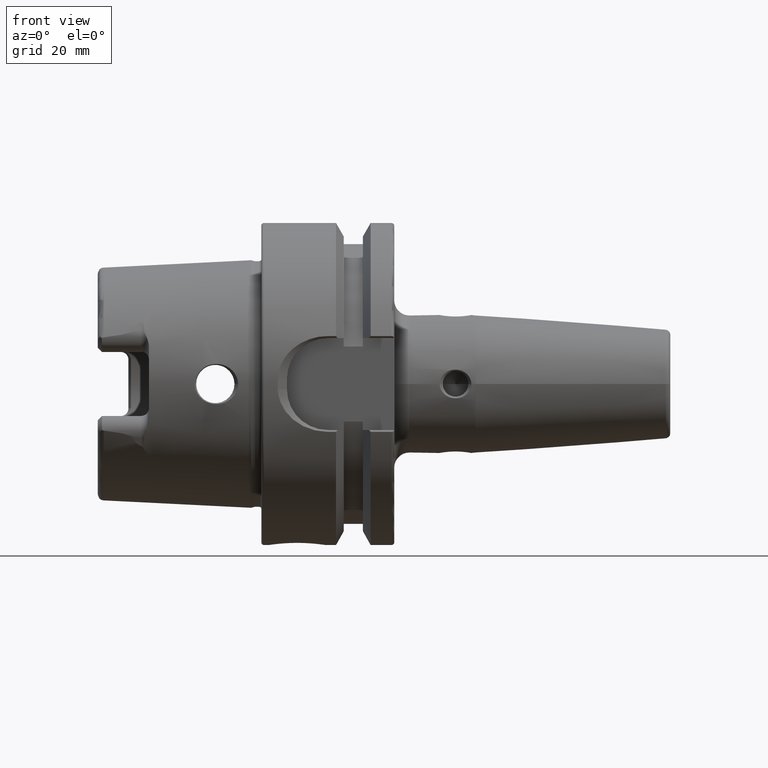
[diagram: clean part render]
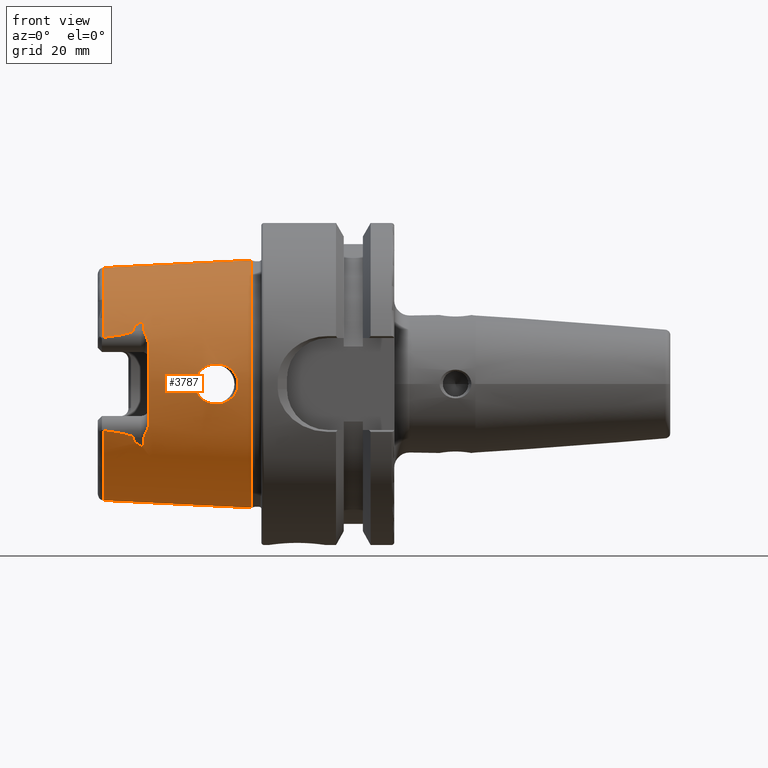
[diagram: same view with one face highlighted and labeled with its STEP entity id]
A machine part, front view. The second image highlights one B-rep face of the part: STEP entity #3787.
In plain terms, the highlighted conical surface has half-angle 2.868 deg.
Its self-contained STEP definition (entity closure, byte-faithful):
#414=CARTESIAN_POINT('',(-1.214962335933E0,0.E0,0.E0));
#415=DIRECTION('',(-1.E0,0.E0,0.E0));
#416=DIRECTION('',(0.E0,0.E0,-1.E0));
#417=AXIS2_PLACEMENT_3D('',#414,#415,#416);
#419=CARTESIAN_POINT('',(-1.214962335933E0,-8.216463940023E-1,
-3.589629535925E-1));
#420=CARTESIAN_POINT('',(-1.206909617047E0,-8.216574272328E-1,
-3.599454130403E-1));
#421=CARTESIAN_POINT('',(-1.191494473020E0,-8.216535039491E-1,
-3.618767076914E-1));
#422=CARTESIAN_POINT('',(-1.170502728434E0,-8.215784687609E-1,
-3.646469196396E-1));
#423=CARTESIAN_POINT('',(-1.151453563512E0,-8.214437228318E-1,
-3.672944627912E-1));
#424=CARTESIAN_POINT('',(-1.133769218807E0,-8.212520182560E-1,
-3.698855324821E-1));
#425=CARTESIAN_POINT('',(-1.117497778188E0,-8.210075521509E-1,
-3.724053779526E-1));
#426=CARTESIAN_POINT('',(-1.103003991768E0,-8.207253744188E-1,
-3.747781330497E-1));
#427=CARTESIAN_POINT('',(-1.089516032900E0,-8.203987997763E-1,
-3.771133081276E-1));
#428=CARTESIAN_POINT('',(-1.076936555809E0,-8.200252864731E-1,
-3.794278903467E-1));
#429=CARTESIAN_POINT('',(-1.065814333933E0,-8.196289056948E-1,
-3.816052904893E-1));
#430=CARTESIAN_POINT('',(-1.055394759824E0,-8.191900307684E-1,
-3.837786835327E-1));
#431=CARTESIAN_POINT('',(-1.045834373740E0,-8.187131410322E-1,
-3.859194348910E-1));
#432=CARTESIAN_POINT('',(-1.037439491394E0,-8.182251064037E-1,
-3.879359361543E-1));
#433=CARTESIAN_POINT('',(-1.029140118829E0,-8.176586721541E-1,
-3.900950396916E-1));
#434=CARTESIAN_POINT('',(-1.022094380579E0,-8.170912111485E-1,
-3.920986337822E-1));
#435=CARTESIAN_POINT('',(-1.015466433306E0,-8.164675650293E-1,
-3.941603455285E-1));
#436=CARTESIAN_POINT('',(-1.009309535508E0,-8.157687482822E-1,
-3.963107563155E-1));
#437=CARTESIAN_POINT('',(-1.004282287563E0,-8.150872952708E-1,
-3.982847548886E-1));
#438=CARTESIAN_POINT('',(-9.990465931668E-1,-8.142081592335E-1,
-4.006739026821E-1));
#439=CARTESIAN_POINT('',(-9.948642363895E-1,-8.132781453398E-1,
-4.030303144505E-1));
#440=CARTESIAN_POINT('',(-9.913979029375E-1,-8.122198968645E-1,
-4.055485626231E-1));
#441=CARTESIAN_POINT('',(-9.887931646956E-1,-8.109027286641E-1,
-4.084671658536E-1));
#442=CARTESIAN_POINT('',(-9.881074093099E-1,-8.098635891446E-1,
-4.105968369598E-1));
#443=CARTESIAN_POINT('',(-9.881232061136E-1,-8.092952279395E-1,
-4.117123086319E-1));
#445=CARTESIAN_POINT('',(-9.881232061136E-1,-8.092952279395E-1,
-4.117123086319E-1));
#446=CARTESIAN_POINT('',(-9.881782912124E-1,-8.073132932457E-1,
-4.156020744830E-1));
#447=CARTESIAN_POINT('',(-9.870438824587E-1,-8.033311410382E-1,
-4.234174882400E-1));
#448=CARTESIAN_POINT('',(-9.813501306353E-1,-7.972240122235E-1,
-4.354034034102E-1));
#449=CARTESIAN_POINT('',(-9.718170839482E-1,-7.912160142930E-1,
-4.471947632657E-1));
#450=CARTESIAN_POINT('',(-9.590835190108E-1,-7.854643955985E-1,
-4.584829505391E-1));
#451=CARTESIAN_POINT('',(-9.435856814649E-1,-7.799496449086E-1,
-4.693062581784E-1));
#452=CARTESIAN_POINT('',(-9.315994234760E-1,-7.764052221106E-1,
-4.762625795978E-1));
#453=CARTESIAN_POINT('',(-9.251968503937E-1,-7.746531852088E-1,
-4.797011456272E-1));
#455=CARTESIAN_POINT('',(-9.251968503937E-1,-7.746531852088E-1,
4.797011456272E-1));
#456=CARTESIAN_POINT('',(-9.315982629202E-1,-7.764049045294E-1,
4.762632028860E-1));
#457=CARTESIAN_POINT('',(-9.435808233862E-1,-7.799483448416E-1,
4.693088097037E-1));
#458=CARTESIAN_POINT('',(-9.590662739786E-1,-7.854577792054E-1,
4.584959359419E-1));
#459=CARTESIAN_POINT('',(-9.717936165349E-1,-7.912049509192E-1,
4.472164763594E-1));
#460=CARTESIAN_POINT('',(-9.813056889281E-1,-7.971927901570E-1,
4.354646801660E-1));
#461=CARTESIAN_POINT('',(-9.870197462593E-1,-8.032880862145E-1,
4.235019880895E-1));
#462=CARTESIAN_POINT('',(-9.881787975038E-1,-8.072950771291E-1,
4.156378256248E-1));
#463=CARTESIAN_POINT('',(-9.881232061136E-1,-8.092952279395E-1,
4.117123086319E-1));
#465=CARTESIAN_POINT('',(-1.214962335933E0,-8.216463940023E-1,
3.589629535925E-1));
#466=CARTESIAN_POINT('',(-1.206909617047E0,-8.216574272328E-1,
3.599454130403E-1));
#467=CARTESIAN_POINT('',(-1.191494473020E0,-8.216535039491E-1,
3.618767076914E-1));
#468=CARTESIAN_POINT('',(-1.170502728434E0,-8.215784687609E-1,
3.646469196396E-1));
#469=CARTESIAN_POINT('',(-1.151453563512E0,-8.214437228318E-1,
3.672944627912E-1));
#470=CARTESIAN_POINT('',(-1.133769218807E0,-8.212520182560E-1,
3.698855324821E-1));
#471=CARTESIAN_POINT('',(-1.117497778188E0,-8.210075521509E-1,
3.724053779526E-1));
#472=CARTESIAN_POINT('',(-1.103003991768E0,-8.207253744188E-1,
3.747781330497E-1));
#473=CARTESIAN_POINT('',(-1.089516032900E0,-8.203987997763E-1,
3.771133081276E-1));
#474=CARTESIAN_POINT('',(-1.076936555809E0,-8.200252864731E-1,
3.794278903467E-1));
#475=CARTESIAN_POINT('',(-1.065814333933E0,-8.196289056948E-1,
3.816052904893E-1));
#476=CARTESIAN_POINT('',(-1.055394759824E0,-8.191900307684E-1,
3.837786835327E-1));
#477=CARTESIAN_POINT('',(-1.045834373740E0,-8.187131410322E-1,
3.859194348910E-1));
#478=CARTESIAN_POINT('',(-1.037439491394E0,-8.182251064037E-1,
3.879359361543E-1));
#479=CARTESIAN_POINT('',(-1.029140118829E0,-8.176586721541E-1,
3.900950396916E-1));
#480=CARTESIAN_POINT('',(-1.022094380579E0,-8.170912111485E-1,
3.920986337822E-1));
#481=CARTESIAN_POINT('',(-1.015466433306E0,-8.164675650293E-1,
3.941603455285E-1));
#482=CARTESIAN_POINT('',(-1.009309535508E0,-8.157687482822E-1,
3.963107563155E-1));
#483=CARTESIAN_POINT('',(-1.004282287563E0,-8.150872952708E-1,
3.982847548886E-1));
#484=CARTESIAN_POINT('',(-9.990465931668E-1,-8.142081592335E-1,
4.006739026821E-1));
#485=CARTESIAN_POINT('',(-9.948642363895E-1,-8.132781453398E-1,
4.030303144505E-1));
#486=CARTESIAN_POINT('',(-9.913979029375E-1,-8.122198968645E-1,
4.055485626231E-1));
#487=CARTESIAN_POINT('',(-9.887931646956E-1,-8.109027286641E-1,
4.084671658536E-1));
#488=CARTESIAN_POINT('',(-9.881074093099E-1,-8.098635891446E-1,
4.105968369598E-1));
#489=CARTESIAN_POINT('',(-9.881232061136E-1,-8.092952279395E-1,
4.117123086319E-1));
#491=CARTESIAN_POINT('',(-1.214962335933E0,0.E0,0.E0));
#492=DIRECTION('',(-1.E0,0.E0,0.E0));
#493=DIRECTION('',(0.E0,-9.163649919573E-1,4.003438540993E-1));
#494=AXIS2_PLACEMENT_3D('',#491,#492,#493);
#496=DIRECTION('',(-9.987474310439E-1,-1.043894675169E-10,-5.003567710383E-2));
#497=VECTOR('',#496,1.137647135239E0);
#498=CARTESIAN_POINT('',(-7.874018217920E-2,1.186287369443E-10,
9.535595482687E-1));
#499=LINE('',#498,#497);
#500=CARTESIAN_POINT('',(-7.874326638371E-2,0.E0,0.E0));
#501=DIRECTION('',(-1.E0,0.E0,0.E0));
#502=DIRECTION('',(0.E0,0.E0,-1.E0));
#503=AXIS2_PLACEMENT_3D('',#500,#501,#502);
#505=DIRECTION('',(-9.987474310439E-1,1.043905282618E-10,5.003567710383E-2));
#506=VECTOR('',#505,1.137647135239E0);
#507=CARTESIAN_POINT('',(-7.874018217920E-2,-1.186287973355E-10,
-9.535595482687E-1));
#508=LINE('',#507,#506);
#509=CARTESIAN_POINT('',(-1.791683784831E-1,-9.485287041170E-1,0.E0));
#510=CARTESIAN_POINT('',(-1.791683784831E-1,-9.485287041170E-1,
-1.132617569934E-2));
#511=CARTESIAN_POINT('',(-1.818257048439E-1,-9.479939662292E-1,
-3.305325502512E-2));
#512=CARTESIAN_POINT('',(-1.926563149124E-1,-9.458856160667E-1,
-6.321574491725E-2));
#513=CARTESIAN_POINT('',(-2.090465513631E-1,-9.428855111056E-1,
-8.968593380211E-2));
#514=CARTESIAN_POINT('',(-2.306699662485E-1,-9.392823282157E-1,
-1.127814149685E-1));
#515=CARTESIAN_POINT('',(-2.567786715252E-1,-9.354767578829E-1,
-1.316127632800E-1));
#516=CARTESIAN_POINT('',(-2.866358461697E-1,-9.318853369152E-1,
-1.454388722883E-1));
#517=CARTESIAN_POINT('',(-3.175797434074E-1,-9.290303536627E-1,
-1.533309873753E-1));
#518=CARTESIAN_POINT('',(-3.492133419003E-1,-9.270251151752E-1,
-1.556951028255E-1));
#519=CARTESIAN_POINT('',(-3.806563515657E-1,-9.259614183240E-1,
-1.525248423762E-1));
#520=CARTESIAN_POINT('',(-4.113100843881E-1,-9.258214656347E-1,
-1.437900154880E-1));
#521=CARTESIAN_POINT('',(-4.399801229674E-1,-9.264983240159E-1,
-1.295526553513E-1));
#522=CARTESIAN_POINT('',(-4.652861655896E-1,-9.277430723922E-1,
-1.102949490576E-1));
#523=CARTESIAN_POINT('',(-4.859675301494E-1,-9.292063746383E-1,
-8.699369219114E-2));
#524=CARTESIAN_POINT('',(-5.014555846179E-1,-9.305612835333E-1,
-6.046646870133E-2));
#525=CARTESIAN_POINT('',(-5.112611560247E-1,-9.315339807790E-1,
-3.113157889393E-2));
#526=CARTESIAN_POINT('',(-5.135587364269E-1,-9.317761270647E-1,
-1.059097683016E-2));
#527=CARTESIAN_POINT('',(-5.135587364269E-1,-9.317761270647E-1,0.E0));
#529=CARTESIAN_POINT('',(-5.135587364269E-1,-9.317761270647E-1,0.E0));
#530=CARTESIAN_POINT('',(-5.135587364269E-1,-9.317761270647E-1,
1.063758424981E-2));
#531=CARTESIAN_POINT('',(-5.112411563417E-1,-9.315318578399E-1,
3.125574447263E-2));
#532=CARTESIAN_POINT('',(-5.013708754313E-1,-9.305531127731E-1,
6.066500323461E-2));
#533=CARTESIAN_POINT('',(-4.858108898370E-1,-9.291937620386E-1,
8.721033664826E-2));
#534=CARTESIAN_POINT('',(-4.650983427781E-1,-9.277316998112E-1,
1.104668161842E-1));
#535=CARTESIAN_POINT('',(-4.397702840285E-1,-9.264906586300E-1,
1.296816070566E-1));
#536=CARTESIAN_POINT('',(-4.110824180469E-1,-9.258189374744E-1,
1.438796481103E-1));
#537=CARTESIAN_POINT('',(-3.803666538481E-1,-9.259665791376E-1,
1.525822589040E-1));
#538=CARTESIAN_POINT('',(-3.489126577518E-1,-9.270399762720E-1,
1.556975297651E-1));
#539=CARTESIAN_POINT('',(-3.173237547582E-1,-9.290509959788E-1,
1.532851806542E-1));
#540=CARTESIAN_POINT('',(-2.864573266635E-1,-9.319049129484E-1,
1.453715442933E-1));
#541=CARTESIAN_POINT('',(-2.566295686656E-1,-9.354964293665E-1,
1.315285304039E-1));
#542=CARTESIAN_POINT('',(-2.304774223724E-1,-9.393121313663E-1,
1.126194519101E-1));
#543=CARTESIAN_POINT('',(-2.088588901813E-1,-9.429184893886E-1,
8.944501055215E-2));
#544=CARTESIAN_POINT('',(-1.925265443345E-1,-9.459104095769E-1,
6.293771871376E-2));
#545=CARTESIAN_POINT('',(-1.817935645568E-1,-9.480004868088E-1,
3.286856913872E-2));
#546=CARTESIAN_POINT('',(-1.791683784831E-1,-9.485287041170E-1,
1.125416314014E-2));
#547=CARTESIAN_POINT('',(-1.791683784831E-1,-9.485287041170E-1,0.E0));
#2559=CARTESIAN_POINT('',(-9.251968503937E-1,-7.746531852088E-1,
4.797011456272E-1));
#2560=CARTESIAN_POINT('',(-9.240379186980E-1,-7.743360484778E-1,
4.803235615072E-1));
#2561=CARTESIAN_POINT('',(-9.217492817552E-1,-7.741329808542E-1,
4.808674962814E-1));
#2562=CARTESIAN_POINT('',(-9.183893812556E-1,-7.751231046586E-1,
4.795917188074E-1));
#2563=CARTESIAN_POINT('',(-9.159775853120E-1,-7.766540060154E-1,
4.773408671664E-1));
#2564=CARTESIAN_POINT('',(-9.139699257066E-1,-7.784473991834E-1,
4.746046569069E-1));
#2565=CARTESIAN_POINT('',(-9.123088665388E-1,-7.803767058533E-1,
4.715874763001E-1));
#2566=CARTESIAN_POINT('',(-9.108011929338E-1,-7.825214529037E-1,
4.681685340162E-1));
#2567=CARTESIAN_POINT('',(-9.094183945890E-1,-7.848986484817E-1,
4.643099077093E-1));
#2568=CARTESIAN_POINT('',(-9.081288785417E-1,-7.875546654326E-1,
4.599209158881E-1));
#2569=CARTESIAN_POINT('',(-9.069333335554E-1,-7.905197886248E-1,
4.549286702996E-1));
#2570=CARTESIAN_POINT('',(-9.058485599978E-1,-7.938058834084E-1,
4.492839017414E-1));
#2571=CARTESIAN_POINT('',(-9.049049191475E-1,-7.973850377183E-1,
4.430020242148E-1));
#2572=CARTESIAN_POINT('',(-9.041277400501E-1,-8.012587608300E-1,
4.360416254936E-1));
#2573=CARTESIAN_POINT('',(-9.035677179812E-1,-8.052591730858E-1,
4.286706566160E-1));
#2574=CARTESIAN_POINT('',(-9.032422108341E-1,-8.092674893710E-1,
4.210897383227E-1));
#2575=CARTESIAN_POINT('',(-9.031808962121E-1,-8.118255168639E-1,
4.161237677173E-1));
#2576=CARTESIAN_POINT('',(-9.031858750730E-1,-8.130866964952E-1,
4.136441583520E-1));
#2588=CARTESIAN_POINT('',(-9.031858750730E-1,-8.130866964952E-1,
4.136441583520E-1));
#2589=CARTESIAN_POINT('',(-9.031933535433E-1,-8.149810443247E-1,
4.099196749375E-1));
#2590=CARTESIAN_POINT('',(-9.020337706870E-1,-8.188139274255E-1,
4.023851612629E-1));
#2591=CARTESIAN_POINT('',(-8.977386899977E-1,-8.245369210049E-1,
3.910299840784E-1));
#2592=CARTESIAN_POINT('',(-8.919858250670E-1,-8.305259500137E-1,
3.788534290484E-1));
#2593=CARTESIAN_POINT('',(-8.854253330578E-1,-8.369183379384E-1,
3.653532708767E-1));
#2594=CARTESIAN_POINT('',(-8.788758358814E-1,-8.435512554608E-1,
3.506464706631E-1));
#2595=CARTESIAN_POINT('',(-8.726428410350E-1,-8.507445856328E-1,
3.337221567737E-1));
#2596=CARTESIAN_POINT('',(-8.676422017384E-1,-8.585276633882E-1,
3.139437890708E-1));
#2597=CARTESIAN_POINT('',(-8.661417322835E-1,-8.637836463852E-1,
2.992426369809E-1));
#2598=CARTESIAN_POINT('',(-8.661417322835E-1,-8.664008516854E-1,
2.914627441942E-1));
#2614=CARTESIAN_POINT('',(-8.661417322835E-1,0.E0,0.E0));
#2615=DIRECTION('',(1.E0,0.E0,0.E0));
#2616=DIRECTION('',(0.E0,-9.478058907476E-1,3.188479158848E-1));
#2617=AXIS2_PLACEMENT_3D('',#2614,#2615,#2616);
#2681=CARTESIAN_POINT('',(-8.661417322835E-1,-8.664008516854E-1,
-2.914627441942E-1));
#2682=CARTESIAN_POINT('',(-8.661417322835E-1,-8.637917939130E-1,
-2.992184176763E-1));
#2683=CARTESIAN_POINT('',(-8.676386682493E-1,-8.585623892611E-1,
-3.138418144108E-1));
#2684=CARTESIAN_POINT('',(-8.725051462690E-1,-8.509368390083E-1,
-3.332444477061E-1));
#2685=CARTESIAN_POINT('',(-8.786404226382E-1,-8.438028431798E-1,
-3.500713612195E-1));
#2686=CARTESIAN_POINT('',(-8.851587841570E-1,-8.371795968912E-1,
-3.647880024359E-1));
#2687=CARTESIAN_POINT('',(-8.917392000372E-1,-8.307692650553E-1,
-3.783508323977E-1));
#2688=CARTESIAN_POINT('',(-8.975819411578E-1,-8.247179798433E-1,
-3.906682739765E-1));
#2689=CARTESIAN_POINT('',(-9.019891880857E-1,-8.189143887831E-1,
-4.021878126864E-1));
#2690=CARTESIAN_POINT('',(-9.031934924517E-1,-8.150162307723E-1,
-4.098504947486E-1));
#2691=CARTESIAN_POINT('',(-9.031858750730E-1,-8.130866964952E-1,
-4.136441583520E-1));
#2698=CARTESIAN_POINT('',(-9.031858750730E-1,-8.130866964952E-1,
-4.136441583520E-1));
#2699=CARTESIAN_POINT('',(-9.031814617953E-1,-8.119687829832E-1,
-4.158420917353E-1));
#2700=CARTESIAN_POINT('',(-9.032292102199E-1,-8.097241731132E-1,
-4.202050323354E-1));
#2701=CARTESIAN_POINT('',(-9.034701799888E-1,-8.063146980818E-1,
-4.266845195183E-1));
#2702=CARTESIAN_POINT('',(-9.038781440107E-1,-8.029168972430E-1,
-4.330003598005E-1));
#2703=CARTESIAN_POINT('',(-9.044480644856E-1,-7.995692325197E-1,
-4.390906591081E-1));
#2704=CARTESIAN_POINT('',(-9.051723282771E-1,-7.963149681004E-1,
-4.448891266043E-1));
#2705=CARTESIAN_POINT('',(-9.060400831315E-1,-7.931964454775E-1,
-4.503357159338E-1));
#2706=CARTESIAN_POINT('',(-9.070362732254E-1,-7.902585712151E-1,
-4.553693540995E-1));
#2707=CARTESIAN_POINT('',(-9.081373241150E-1,-7.875470703165E-1,
-4.599316794173E-1));
#2708=CARTESIAN_POINT('',(-9.093545592695E-1,-7.850255209103E-1,
-4.641010597244E-1));
#2709=CARTESIAN_POINT('',(-9.106724751183E-1,-7.827318657678E-1,
-4.678287471882E-1));
#2710=CARTESIAN_POINT('',(-9.120779085963E-1,-7.806867920412E-1,
-4.710958686508E-1));
#2711=CARTESIAN_POINT('',(-9.135826137963E-1,-7.788742843197E-1,
-4.739405014031E-1));
#2712=CARTESIAN_POINT('',(-9.152540021041E-1,-7.772620237875E-1,
-4.764188302695E-1));
#2713=CARTESIAN_POINT('',(-9.171223505580E-1,-7.758760785174E-1,
-4.784937534744E-1));
#2714=CARTESIAN_POINT('',(-9.196190040588E-1,-7.746538060112E-1,
-4.802314691352E-1));
#2715=CARTESIAN_POINT('',(-9.225458937528E-1,-7.741650645961E-1,
-4.807401372405E-1));
#2716=CARTESIAN_POINT('',(-9.243083080897E-1,-7.744100393852E-1,
-4.801783461749E-1));
#2717=CARTESIAN_POINT('',(-9.251968503937E-1,-7.746531852088E-1,
-4.797011456272E-1));
#2783=CARTESIAN_POINT('',(-7.874326638371E-2,0.E0,-9.535598881463E-1));
#2784=CARTESIAN_POINT('',(-7.874326638371E-2,0.E0,9.535598881463E-1));
#2785=VERTEX_POINT('',#2783);
#2786=VERTEX_POINT('',#2784);
#2898=CARTESIAN_POINT('',(-8.661417322835E-1,-8.664008516854E-1,
-2.914627441942E-1));
#2900=VERTEX_POINT('',#2898);
#2901=CARTESIAN_POINT('',(-9.251968503937E-1,-7.746531852088E-1,
-4.797011456272E-1));
#2902=VERTEX_POINT('',#2901);
#2904=CARTESIAN_POINT('',(-8.661417322835E-1,-8.664008516854E-1,
2.914627441942E-1));
#2906=VERTEX_POINT('',#2904);
#2911=CARTESIAN_POINT('',(-9.251968503937E-1,-7.746531852088E-1,
4.797011456272E-1));
#2912=VERTEX_POINT('',#2911);
#2913=VERTEX_POINT('',#445);
#2914=CARTESIAN_POINT('',(-9.881232061136E-1,-8.092952279395E-1,
4.117123086319E-1));
#2915=VERTEX_POINT('',#2914);
#2916=VERTEX_POINT('',#2576);
#2917=VERTEX_POINT('',#2698);
#2954=CARTESIAN_POINT('',(-1.214962335933E0,0.E0,-8.966366035518E-1));
#2955=CARTESIAN_POINT('',(-1.214962335933E0,-8.216463940023E-1,
-3.589629535925E-1));
#2956=VERTEX_POINT('',#2954);
#2957=VERTEX_POINT('',#2955);
#2960=CARTESIAN_POINT('',(-1.214962335933E0,0.E0,8.966366035518E-1));
#2962=VERTEX_POINT('',#2960);
#2964=CARTESIAN_POINT('',(-1.214962335933E0,-8.216463940023E-1,
3.589629535925E-1));
#2965=VERTEX_POINT('',#2964);
#3033=CARTESIAN_POINT('',(-1.791683784831E-1,-9.485287041170E-1,0.E0));
#3035=VERTEX_POINT('',#3033);
#3037=CARTESIAN_POINT('',(-5.135587364269E-1,-9.317761270647E-1,0.E0));
#3039=VERTEX_POINT('',#3037);
#3750=CARTESIAN_POINT('',(-6.468512714133E-1,0.E0,0.E0));
#3751=DIRECTION('',(1.E0,0.E0,0.E0));
#3752=DIRECTION('',(0.E0,0.E0,1.E0));
#3753=AXIS2_PLACEMENT_3D('',#3750,#3751,#3752);
#3754=CONICAL_SURFACE('',#3753,9.250983224875E-1,2.86805556E0);
#3755=ORIENTED_EDGE('',*,*,#3317,.T.);
#3757=ORIENTED_EDGE('',*,*,#3756,.T.);
#3759=ORIENTED_EDGE('',*,*,#3758,.T.);
#3761=ORIENTED_EDGE('',*,*,#3760,.F.);
#3763=ORIENTED_EDGE('',*,*,#3762,.F.);
#3765=ORIENTED_EDGE('',*,*,#3764,.F.);
#3767=ORIENTED_EDGE('',*,*,#3766,.F.);
#3769=ORIENTED_EDGE('',*,*,#3768,.F.);
#3771=ORIENTED_EDGE('',*,*,#3770,.T.);
#3773=ORIENTED_EDGE('',*,*,#3772,.F.);
#3774=ORIENTED_EDGE('',*,*,#3740,.T.);
#3775=ORIENTED_EDGE('',*,*,#3281,.F.);
#3777=ORIENTED_EDGE('',*,*,#3776,.F.);
#3778=ORIENTED_EDGE('',*,*,#3277,.T.);
#3779=EDGE_LOOP('',(#3755,#3757,#3759,#3761,#3763,#3765,#3767,#3769,#3771,#3773,
#3774,#3775,#3777,#3778));
#3780=FACE_OUTER_BOUND('',#3779,.F.);
#3782=ORIENTED_EDGE('',*,*,#3781,.F.);
#3784=ORIENTED_EDGE('',*,*,#3783,.F.);
#3785=EDGE_LOOP('',(#3782,#3784));
#3786=FACE_BOUND('',#3785,.F.);
#3787=ADVANCED_FACE('',(#3780,#3786),#3754,.T.);
#418=CIRCLE('',#417,8.966366035518E-1);
#444=B_SPLINE_CURVE_WITH_KNOTS('',3,(#419,#420,#421,#422,#423,#424,#425,#426,
#427,#428,#429,#430,#431,#432,#433,#434,#435,#436,#437,#438,#439,#440,#441,#442,
#443),.UNSPECIFIED.,.F.,.F.,(4,1,1,1,1,1,1,1,1,1,1,1,1,1,1,1,1,1,1,1,1,1,4),(
0.E0,4.545454545455E-2,9.090909090909E-2,1.363636363636E-1,1.818181818182E-1,
2.272727272727E-1,2.727272727273E-1,3.181818181818E-1,3.636363636364E-1,
4.090909090909E-1,4.545454545455E-1,5.E-1,5.454545454545E-1,5.909090909091E-1,
6.363636363636E-1,6.818181818182E-1,7.272727272727E-1,7.727272727273E-1,
8.181818181818E-1,8.636363636364E-1,9.090909090909E-1,9.545454545455E-1,1.E0),
.UNSPECIFIED.);
#454=B_SPLINE_CURVE_WITH_KNOTS('',3,(#445,#446,#447,#448,#449,#450,#451,#452,
#453),.UNSPECIFIED.,.F.,.F.,(4,1,1,1,1,1,4),(0.E0,1.666666666667E-1,
3.333333333333E-1,5.E-1,6.666666666667E-1,8.333333333333E-1,1.E0),
.UNSPECIFIED.);
#464=B_SPLINE_CURVE_WITH_KNOTS('',3,(#455,#456,#457,#458,#459,#460,#461,#462,
#463),.UNSPECIFIED.,.F.,.F.,(4,1,1,1,1,1,4),(0.E0,1.666666666667E-1,
3.333333333333E-1,5.E-1,6.666666666667E-1,8.333333333333E-1,1.E0),
.UNSPECIFIED.);
#490=B_SPLINE_CURVE_WITH_KNOTS('',3,(#465,#466,#467,#468,#469,#470,#471,#472,
#473,#474,#475,#476,#477,#478,#479,#480,#481,#482,#483,#484,#485,#486,#487,#488,
#489),.UNSPECIFIED.,.F.,.F.,(4,1,1,1,1,1,1,1,1,1,1,1,1,1,1,1,1,1,1,1,1,1,4),(
0.E0,4.545454545455E-2,9.090909090909E-2,1.363636363636E-1,1.818181818182E-1,
2.272727272727E-1,2.727272727273E-1,3.181818181818E-1,3.636363636364E-1,
4.090909090909E-1,4.545454545455E-1,5.E-1,5.454545454545E-1,5.909090909091E-1,
6.363636363636E-1,6.818181818182E-1,7.272727272727E-1,7.727272727273E-1,
8.181818181818E-1,8.636363636364E-1,9.090909090909E-1,9.545454545455E-1,1.E0),
.UNSPECIFIED.);
#495=CIRCLE('',#494,8.966366035518E-1);
#504=CIRCLE('',#503,9.535598881463E-1);
#528=B_SPLINE_CURVE_WITH_KNOTS('',3,(#509,#510,#511,#512,#513,#514,#515,#516,
#517,#518,#519,#520,#521,#522,#523,#524,#525,#526,#527),.UNSPECIFIED.,.F.,.F.,
(4,1,1,1,1,1,1,1,1,1,1,1,1,1,1,1,4),(0.E0,6.25E-2,1.25E-1,1.875E-1,2.5E-1,
3.125E-1,3.75E-1,4.375E-1,5.E-1,5.625E-1,6.25E-1,6.875E-1,7.5E-1,8.125E-1,
8.75E-1,9.375E-1,1.E0),.UNSPECIFIED.);
#548=B_SPLINE_CURVE_WITH_KNOTS('',3,(#529,#530,#531,#532,#533,#534,#535,#536,
#537,#538,#539,#540,#541,#542,#543,#544,#545,#546,#547),.UNSPECIFIED.,.F.,.F.,
(4,1,1,1,1,1,1,1,1,1,1,1,1,1,1,1,4),(0.E0,6.25E-2,1.25E-1,1.875E-1,2.5E-1,
3.125E-1,3.75E-1,4.375E-1,5.E-1,5.625E-1,6.25E-1,6.875E-1,7.5E-1,8.125E-1,
8.75E-1,9.375E-1,1.E0),.UNSPECIFIED.);
#2577=B_SPLINE_CURVE_WITH_KNOTS('',3,(#2559,#2560,#2561,#2562,#2563,#2564,#2565,
#2566,#2567,#2568,#2569,#2570,#2571,#2572,#2573,#2574,#2575,#2576),
.UNSPECIFIED.,.F.,.F.,(4,1,1,1,1,1,1,1,1,1,1,1,1,1,1,4),(0.E0,6.666666666667E-2,
1.333333333333E-1,2.E-1,2.666666666667E-1,3.333333333333E-1,4.E-1,
4.666666666667E-1,5.333333333333E-1,6.E-1,6.666666666667E-1,7.333333333333E-1,
8.E-1,8.666666666667E-1,9.333333333333E-1,1.E0),.UNSPECIFIED.);
#2599=B_SPLINE_CURVE_WITH_KNOTS('',3,(#2588,#2589,#2590,#2591,#2592,#2593,#2594,
#2595,#2596,#2597,#2598),.UNSPECIFIED.,.F.,.F.,(4,1,1,1,1,1,1,1,4),(0.E0,
1.25E-1,2.5E-1,3.75E-1,5.E-1,6.25E-1,7.5E-1,8.75E-1,1.E0),.UNSPECIFIED.);
#2618=CIRCLE('',#2617,9.141121195206E-1);
#2692=B_SPLINE_CURVE_WITH_KNOTS('',3,(#2681,#2682,#2683,#2684,#2685,#2686,#2687,
#2688,#2689,#2690,#2691),.UNSPECIFIED.,.F.,.F.,(4,1,1,1,1,1,1,1,4),(0.E0,
1.25E-1,2.5E-1,3.75E-1,5.E-1,6.25E-1,7.5E-1,8.75E-1,1.E0),.UNSPECIFIED.);
#2718=B_SPLINE_CURVE_WITH_KNOTS('',3,(#2698,#2699,#2700,#2701,#2702,#2703,#2704,
#2705,#2706,#2707,#2708,#2709,#2710,#2711,#2712,#2713,#2714,#2715,#2716,#2717),
.UNSPECIFIED.,.F.,.F.,(4,1,1,1,1,1,1,1,1,1,1,1,1,1,1,1,1,4),(0.E0,
5.882352941176E-2,1.176470588235E-1,1.764705882353E-1,2.352941176471E-1,
2.941176470588E-1,3.529411764706E-1,4.117647058824E-1,4.705882352941E-1,
5.294117647059E-1,5.882352941176E-1,6.470588235294E-1,7.058823529412E-1,
7.647058823529E-1,8.235294117647E-1,8.823529411765E-1,9.411764705882E-1,1.E0),
.UNSPECIFIED.);
#3277=EDGE_CURVE('',#2785,#2956,#508,.T.);
#3281=EDGE_CURVE('',#2786,#2962,#499,.T.);
#3317=EDGE_CURVE('',#2956,#2957,#418,.T.);
#3740=EDGE_CURVE('',#2965,#2962,#495,.T.);
#3756=EDGE_CURVE('',#2957,#2913,#444,.T.);
#3758=EDGE_CURVE('',#2913,#2902,#454,.T.);
#3760=EDGE_CURVE('',#2917,#2902,#2718,.T.);
#3762=EDGE_CURVE('',#2900,#2917,#2692,.T.);
#3764=EDGE_CURVE('',#2906,#2900,#2618,.T.);
#3766=EDGE_CURVE('',#2916,#2906,#2599,.T.);
#3768=EDGE_CURVE('',#2912,#2916,#2577,.T.);
#3770=EDGE_CURVE('',#2912,#2915,#464,.T.);
#3772=EDGE_CURVE('',#2965,#2915,#490,.T.);
#3776=EDGE_CURVE('',#2785,#2786,#504,.T.);
#3781=EDGE_CURVE('',#3035,#3039,#528,.T.);
#3783=EDGE_CURVE('',#3039,#3035,#548,.T.);